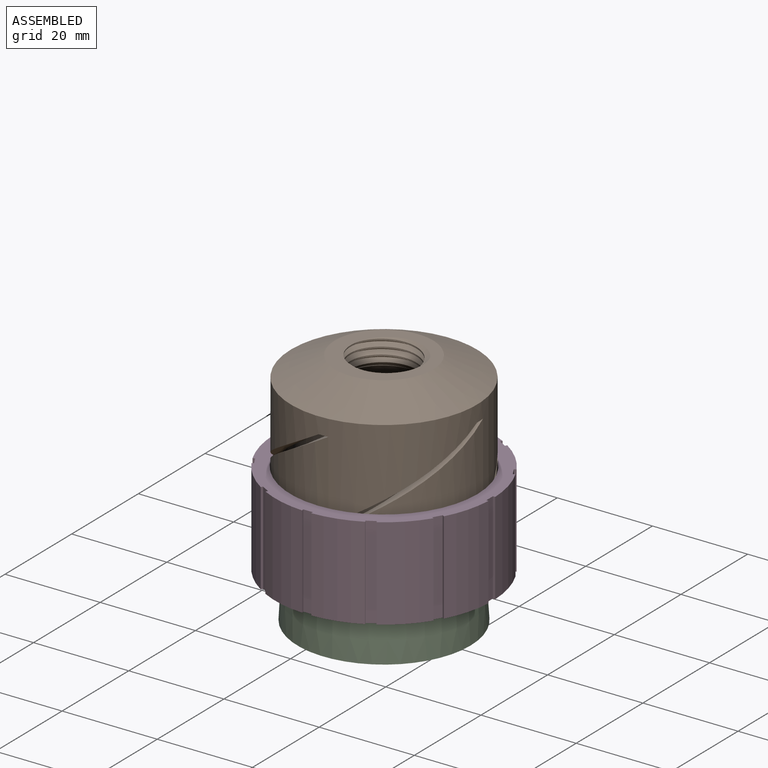
[diagram: assembled view]
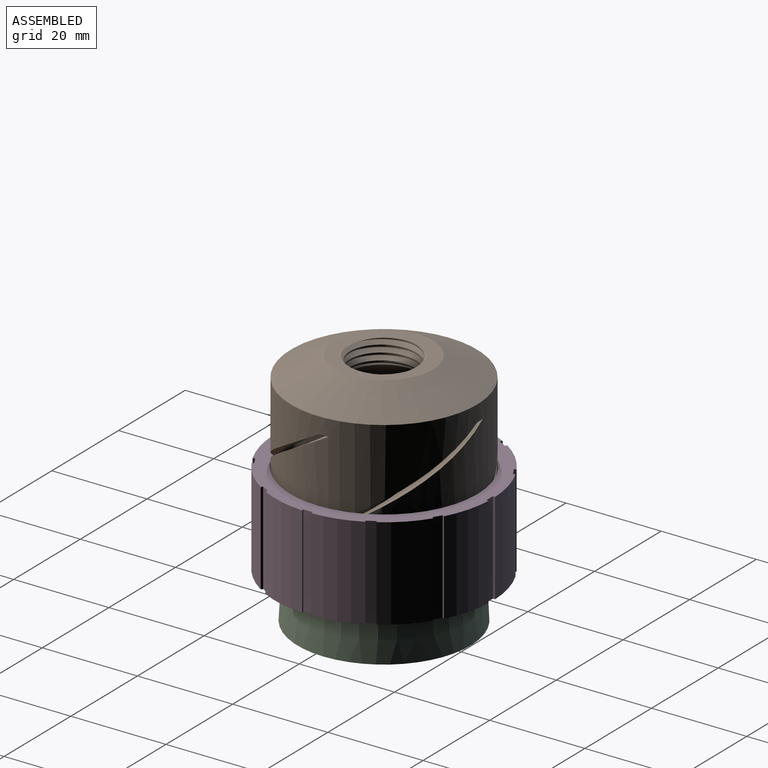
[diagram: assembled view, second angle]
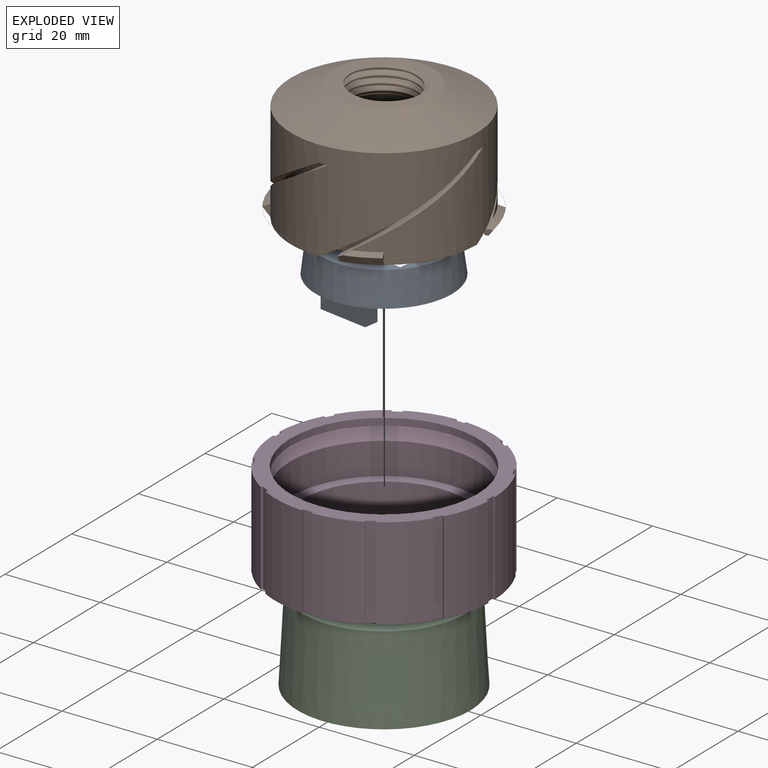
[diagram: exploded view]
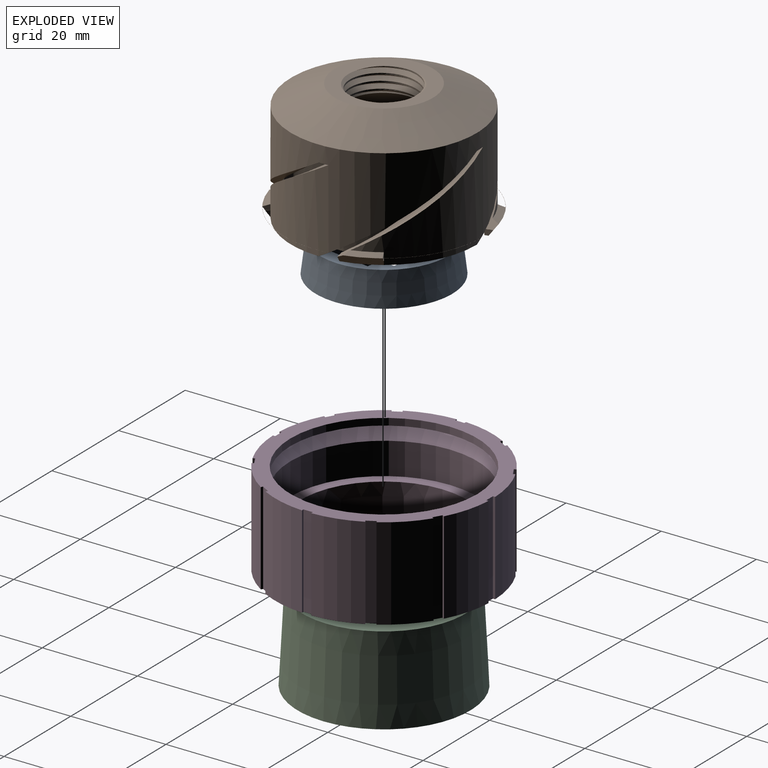
[diagram: exploded view, second angle]
ASSEMBLY  parts=4 mates=5
PART A: 16 faces, bbox 28.8x28.8x12.1 mm
  f0: cone r=14.38mm half-angle=7deg, axis (0,0,-1), area 616.7mm2, adj f1,f2
  f1: plane 27.04x27.04mm, normal (0,0,1), area 243.9mm2, adj f0,f8,f9,f10,f11,f12,f13,f14
  f2: plane 28.75x28.75mm, normal (0,0,-1), area 286.6mm2, adj f0,f3,f4,f5,f6,f8,f9,f10
  f3: plane 10.67x5.08mm, normal (0,-1,0), area 54.2mm2, adj f2,f4,f6,f7
  f4: plane 5.08x3.05mm, normal (-1,0,0), area 15.5mm2, adj f2,f3,f5,f7
  f5: plane 10.67x5.08mm, normal (0,1,0), area 54.2mm2, adj f2,f4,f6,f7
  f6: plane 5.08x3.05mm, normal (1,0,0), area 15.5mm2, adj f2,f3,f5,f7
  f7: plane 10.67x3.05mm, normal (0,0,-1), area 32.5mm2, adj f3,f4,f5,f6
  f8: plane 13.34x6.99mm, normal (1,0,0), area 93.1mm2, adj f1,f2,f9,f15
  f9: plane 21.23x6.99mm, normal (0,1,0), area 148.3mm2, adj f1,f2,f8,f10
  f10: plane 13.34x6.99mm, normal (-1,0,0), area 93.1mm2, adj f1,f2,f9,f11
  f11: plane 6.99x3.23mm, normal (0,-1,0), area 22.6mm2, adj f1,f2,f10,f12
  f12: plane 6.99x3.18mm, normal (-1,0,0), area 22.2mm2, adj f1,f2,f11,f13
  f13: plane 14.82x6.99mm, normal (0,-1,0), area 103.5mm2, adj f1,f2,f12,f14
  f14: plane 6.99x3.18mm, normal (1,0,0), area 22.2mm2, adj f1,f2,f13,f15
  f15: plane 6.99x3.19mm, normal (0,-1,0), area 22.3mm2, adj f1,f2,f8,f14
PART B: 96 faces, bbox 43.6x43.6x26.9 mm
  f0: cone r=19.56mm half-angle=36.3deg, axis (0,0,1), area 18.8mm2, adj f5,f8,f18,f25,f38,f68,f71,f85
  f1: cone r=19.56mm half-angle=36.3deg, axis (0,0,1), area 18.8mm2, adj f7,f10,f17,f23,f36,f64,f66,f81
  f2: cone r=19.56mm half-angle=36.3deg, axis (0,0,1), area 18.8mm2, adj f6,f12,f16,f24,f32,f60,f62,f77
  f3: cone r=19.56mm half-angle=36.3deg, axis (0,0,1), area 18.8mm2, adj f4,f15,f26,f34,f52,f57,f59,f73
  f4: bspline ~9.09x6.88mm, area 0mm2, adj f3,f52,f73
  f5: bspline ~9.09x6.88mm, area 0mm2, adj f0,f8,f86
  f6: bspline ~9.09x6.88mm, area 0mm2, adj f2,f12,f78
  f7: bspline ~9.09x6.88mm, area 0mm2, adj f1,f10,f82
  f8: cone r=20.96mm half-angle=70deg, axis (0,0,-1), area 9.6mm2, adj f0,f5,f38,f48,f85,f86
  f9: cone r=20.96mm half-angle=70deg, axis (0,0,-1), area 0mm2, adj f33,f47,f84
  f10: cone r=20.96mm half-angle=70deg, axis (0,0,-1), area 9.6mm2, adj f1,f7,f36,f47,f81,f82
  f11: cone r=20.96mm half-angle=70deg, axis (0,0,-1), area 0mm2, adj f37,f47,f80
  f12: cone r=20.96mm half-angle=70deg, axis (0,0,-1), area 9.6mm2, adj f2,f6,f32,f47,f77,f78
  f13: cone r=20.96mm half-angle=70deg, axis (0,0,-1), area 0mm2, adj f35,f47,f76
  f14: cone r=20.96mm half-angle=70deg, axis (0,0,-1), area 0mm2, adj f31,f47,f72
  f15: plane 1.82x0.43mm, normal (0,0,-1), area 0mm2, adj f3,f30,f34,f59,f92,f93
  f16: plane 1.82x0.43mm, normal (0,0,-1), area 0mm2, adj f2,f28,f32,f60,f94,f95
  f17: plane 1.82x0.43mm, normal (0,0,-1), area 0mm2, adj f1,f27,f36,f64,f90,f91
  f18: plane 1.82x0.43mm, normal (0,0,-1), area 0mm2, adj f0,f29,f38,f68,f88,f89
  f19: bspline ~9.09x6.88mm, area 1.9mm2, adj f26,f30,f47,f58
  f20: bspline ~9.09x6.88mm, area 1.9mm2, adj f25,f29,f47,f69
  f21: bspline ~9.09x6.88mm, area 1.9mm2, adj f24,f28,f47,f63
  f22: bspline ~9.09x6.88mm, area 1.9mm2, adj f23,f27,f47,f67
  f23: plane 19.13x15.65mm, normal (0,0,-1), area 19.9mm2, adj f1,f22,f27,f47,f64
  f24: plane 19.13x15.65mm, normal (0,0,-1), area 19.9mm2, adj f2,f21,f28,f47,f60
  f25: plane 19.13x15.65mm, normal (0,0,-1), area 19.9mm2, adj f0,f20,f29,f48,f68
  f26: plane 19.13x15.65mm, normal (0,0,-1), area 19.9mm2, adj f3,f19,f30,f47,f59
  f27: cone r=15.62mm half-angle=10.1deg, axis (0,0,-1), area 455.9mm2, adj f17,f22,f23,f36,f37,f46,f64,f65
  f28: cone r=15.62mm half-angle=10.1deg, axis (0,0,-1), area 455.9mm2, adj f16,f21,f24,f32,f35,f46,f60,f61
  f29: cone r=15.62mm half-angle=10.1deg, axis (0,0,-1), area 455.9mm2, adj f18,f20,f25,f33,f38,f46,f68,f69
  f30: cone r=15.62mm half-angle=10.1deg, axis (0,0,-1), area 455.9mm2, adj f15,f19,f26,f31,f34,f46,f56,f58
  f31: bspline ~25.62x21.49mm, area 77.1mm2, adj f14,f30,f40,f47,f56,f72
  f32: bspline ~27.53x20.32mm, area 79.4mm2, adj f2,f12,f16,f28,f40,f47,f94,f95
  f33: bspline ~25.62x21.49mm, area 77.1mm2, adj f9,f29,f41,f47,f70,f84
  f34: bspline ~27.53x20.32mm, area 79.4mm2, adj f3,f15,f30,f41,f47,f52,f92,f93
  f35: bspline ~25.62x21.49mm, area 77.1mm2, adj f13,f28,f42,f47,f61,f76
  f36: bspline ~27.53x20.32mm, area 79.4mm2, adj f1,f10,f17,f27,f42,f47,f90,f91
  f37: bspline ~25.62x21.49mm, area 77.1mm2, adj f11,f27,f43,f47,f65,f80
  f38: bspline ~27.53x20.32mm, area 79.4mm2, adj f0,f8,f18,f29,f43,f47,f48,f88
  f39: cone r=21.16mm half-angle=65.5deg, axis (0,0,-1), area 952.3mm2, adj f45,f47
  f40: plane 4.01x1.95mm, normal (0,0,-1), area 6.9mm2, adj f31,f32,f46,f47
  f41: plane 4.01x1.95mm, normal (0,0,-1), area 6.9mm2, adj f33,f34,f46,f47
  f42: plane 4.01x1.95mm, normal (0,0,-1), area 6.9mm2, adj f35,f36,f46,f47
  f43: plane 4.01x1.95mm, normal (0,0,-1), area 6.9mm2, adj f37,f38,f46,f47
  f44: plane 31.24x31.24mm, normal (0,0,-1), area 131mm2, adj f46,f51
  f45: plane 21.32x21.32mm, normal (0,0,1), area 163.6mm2, adj f39,f53,f54,f55
  f46: cylinder r=15.62mm len=31.24mm, axis (0,0,1), area 1745.1mm2, adj f27,f28,f29,f30,f40,f41,f42,f43
  f47: cylinder r=19.56mm len=39.12mm, axis (0,0,1), area 2169mm2, adj f9,f10,f11,f12,f13,f14,f19,f20
  f48: cylinder r=19.56mm len=18.61mm, axis (0,0,1), area 220.3mm2, adj f8,f25,f38,f47,f71,f85
  f49: cone r=12.47mm half-angle=40deg, axis (0,0,-1), area 11.6mm2, adj f50,f53,f54,f55
  f50: cone r=12.47mm half-angle=40deg, axis (0,0,-1), area 481.8mm2, adj f49,f51,f54,f55
  f51: cone r=14.22mm half-angle=7deg, axis (0,0,-1), area 1205.3mm2, adj f44,f50
  f52: cone r=20.96mm half-angle=70deg, axis (0,0,-1), area 9.6mm2, adj f3,f4,f34,f47,f73,f74
  f53: cylinder r=6.99mm len=13.97mm, axis (0,0,1), area 43.4mm2, adj f45,f49,f54,f55
  f54: bspline ~18.48x16mm, area 203mm2, adj f45,f49,f50,f53,f55
  f55: bspline ~18.48x16mm, area 192.1mm2, adj f45,f49,f50,f53,f54
  f56: plane 0.99x0.25mm, normal (0,0,-1), area 0.1mm2, adj f30,f31,f47,f58
  f57: plane 1.21x0.73mm, normal (0.57,-0.82,0), area 0.5mm2, adj f3,f47,f75
  f58: plane 0.97x0.1mm, normal (1,0.1,0), area 0.1mm2, adj f19,f30,f47,f56
  f59: plane 1.82x1.21mm, normal (-0.21,0.98,0), area 1.6mm2, adj f3,f15,f26,f30
  f60: plane 1.82x1.21mm, normal (-0.98,-0.21,0), area 1.6mm2, adj f2,f16,f24,f28
  f61: plane 0.99x0.25mm, normal (0,0,-1), area 0.1mm2, adj f28,f35,f47,f63
  f62: plane 1.21x0.73mm, normal (0.82,0.57,0), area 0.5mm2, adj f2,f47,f79
  f63: plane 0.97x0.1mm, normal (-0.1,1,0), area 0.1mm2, adj f21,f28,f47,f61
  f64: plane 1.82x1.21mm, normal (0.21,-0.98,0), area 1.6mm2, adj f1,f17,f23,f27
  f65: plane 0.99x0.25mm, normal (0,0,-1), area 0.1mm2, adj f27,f37,f47,f67
  f66: plane 1.21x0.73mm, normal (-0.57,0.82,0), area 0.5mm2, adj f1,f47,f83
  f67: plane 0.97x0.1mm, normal (-1,-0.1,0), area 0.1mm2, adj f22,f27,f47,f65
  f68: plane 1.82x1.21mm, normal (0.98,0.21,0), area 1.6mm2, adj f0,f18,f25,f29
  f69: plane 0.97x0.1mm, normal (0.1,-1,0), area 0.1mm2, adj f20,f29,f47,f70
  f70: plane 0.99x0.25mm, normal (0,0,-1), area 0.1mm2, adj f29,f33,f47,f69
  f71: plane 1.21x0.73mm, normal (-0.82,-0.57,0), area 0.5mm2, adj f0,f48,f87
  f72: plane 0.13x0.05mm, normal (-0.98,-0.21,0), area 0mm2, adj f14,f31,f47
  f73: cylinder r=20.95mm len=20.78mm, axis (0,0,-1), area 0.2mm2, adj f3,f4,f52,f74
  f74: plane 1.24x1.21mm, normal (0.47,-0.88,0), area 1.2mm2, adj f3,f47,f52,f73,f75
  f75: plane 0.79x0.51mm, normal (0,0,1), area 0mm2, adj f3,f57,f74
  f76: plane 0.13x0.05mm, normal (0.21,-0.98,0), area 0mm2, adj f13,f35,f47
  f77: plane 1.24x1.21mm, normal (0.88,0.47,0), area 1.2mm2, adj f2,f12,f47,f78,f79
  f78: cylinder r=20.95mm len=20.78mm, axis (0,0,-1), area 0.2mm2, adj f2,f6,f12,f77
  f79: plane 0.79x0.51mm, normal (0,0,1), area 0mm2, adj f2,f62,f77
  f80: plane 0.13x0.05mm, normal (0.98,0.21,0), area 0mm2, adj f11,f37,f47
  f81: plane 1.24x1.21mm, normal (-0.47,0.88,0), area 1.2mm2, adj f1,f10,f47,f82,f83
  f82: cylinder r=20.95mm len=20.78mm, axis (0,0,-1), area 0.2mm2, adj f1,f7,f10,f81
  f83: plane 0.79x0.51mm, normal (0,0,1), area 0mm2, adj f1,f66,f81
  f84: plane 0.13x0.05mm, normal (-0.21,0.98,0), area 0mm2, adj f9,f33,f47
  f85: plane 1.24x1.21mm, normal (-0.88,-0.47,0), area 1.2mm2, adj f0,f8,f48,f86,f87
  f86: cylinder r=20.95mm len=20.78mm, axis (0,0,-1), area 0.2mm2, adj f0,f5,f8,f85
  f87: plane 0.79x0.51mm, normal (0,0,1), area 0mm2, adj f0,f71,f85
  f88: cylinder r=19.56mm len=0.03mm, axis (0,0,-1), area 0mm2, adj f18,f38,f89
  f89: plane 0.88x0.19mm, normal (0.98,0.21,0), area 0mm2, adj f0,f18,f38,f88
  f90: cylinder r=19.56mm len=0.03mm, axis (0,0,-1), area 0mm2, adj f17,f36,f91
  f91: plane 0.88x0.19mm, normal (0.21,-0.98,0), area 0mm2, adj f1,f17,f36,f90
  f92: cylinder r=19.56mm len=0.03mm, axis (0,0,-1), area 0mm2, adj f15,f34,f93
  f93: plane 0.88x0.19mm, normal (-0.21,0.98,0), area 0mm2, adj f3,f15,f34,f92
  f94: cylinder r=19.56mm len=0.03mm, axis (0,0,-1), area 0mm2, adj f16,f32,f95
  f95: plane 0.88x0.19mm, normal (-0.98,-0.21,0), area 0mm2, adj f2,f16,f32,f94
PART C: 12 faces, bbox 36.3x36.3x18.2 mm
  f0: cone r=18.16mm half-angle=3deg, axis (0,0,-1), area 2020.8mm2, adj f2,f10
  f1: cylinder r=16.26mm len=32.51mm, axis (0,0,-1), area 1549.3mm2, adj f2,f3,f4,f6,f8
  f2: plane 36.32x36.32mm, normal (0,0,-1), area 206mm2, adj f0,f1
  f3: plane 32.51x32.51mm, normal (0,0,-1), area 205.9mm2, adj f1,f11
  f4: cylinder r=1.88mm len=3.93mm, axis (0.87,-0.5,0), area 15.3mm2, adj f1,f5
  f5: plane 3.76x3.26mm, normal (-0.87,0.5,0), area 11.1mm2, adj f4
  f6: cylinder r=1.88mm len=3.93mm, axis (-0.87,-0.5,0), area 15.3mm2, adj f1,f7
  f7: plane 3.76x3.26mm, normal (0.87,0.5,0), area 11.1mm2, adj f6
  f8: cylinder r=1.88mm len=3.76mm, axis (0,1,0), area 15.3mm2, adj f1,f9
  f9: plane 3.76x3.76mm, normal (0,-1,0), area 11.1mm2, adj f8
  f10: plane 34.42x34.42mm, normal (0,0,1), area 306.1mm2, adj f0,f11
  f11: cylinder r=14.1mm len=28.19mm, axis (0,0,-1), area 236.2mm2, adj f3,f10
PART D: 56 faces, bbox 45.7x45.7x19.4 mm
  f0: cylinder r=22.86mm len=19.43mm, axis (0,0,-1), area 194.4mm2, adj f12,f13,f50,f53
  f1: cylinder r=22.86mm len=19.43mm, axis (0,0,-1), area 194.4mm2, adj f12,f13,f47,f49
  f2: cylinder r=22.86mm len=19.43mm, axis (0,0,-1), area 194.4mm2, adj f12,f13,f44,f46
  f3: cylinder r=22.86mm len=19.43mm, axis (0,0,-1), area 194.4mm2, adj f12,f13,f20,f43
  f4: cylinder r=22.86mm len=19.43mm, axis (0,0,-1), area 194.4mm2, adj f12,f13,f40,f54
  f5: cylinder r=22.86mm len=19.43mm, axis (0,0,-1), area 194.4mm2, adj f12,f13,f37,f41
  f6: cylinder r=22.86mm len=19.43mm, axis (0,0,-1), area 194.4mm2, adj f12,f13,f34,f38
  f7: cylinder r=22.86mm len=19.43mm, axis (0,0,-1), area 194.4mm2, adj f12,f13,f31,f35
  f8: cylinder r=22.86mm len=19.43mm, axis (0,0,-1), area 194.4mm2, adj f12,f13,f28,f32
  f9: cylinder r=22.86mm len=19.43mm, axis (0,0,-1), area 194.4mm2, adj f12,f13,f25,f29
  f10: cylinder r=22.86mm len=19.43mm, axis (0,0,-1), area 194.4mm2, adj f12,f13,f22,f26
  f11: cylinder r=22.86mm len=19.43mm, axis (0,0,-1), area 194.4mm2, adj f12,f13,f19,f23
  f12: plane 45.7x45.7mm, normal (0,0,1), area 412.9mm2, adj f0,f1,f2,f3,f4,f5,f6,f7
  f13: plane 45.7x45.7mm, normal (0,0,-1), area 622.9mm2, adj f0,f1,f2,f3,f4,f5,f6,f7
  f14: cylinder r=19.69mm len=39.37mm, axis (0,0,1), area 179.3mm2, adj f12,f15
  f15: cone r=19.63mm half-angle=70deg, axis (0,0,-1), area 236.6mm2, adj f14,f16
  f16: cone r=21.41mm half-angle=37.3deg, axis (0,0,1), area 367.2mm2, adj f15,f18
  f17: plane 39.37x39.37mm, normal (0,0,1), area 258.8mm2, adj f18,f55
  f18: cylinder r=19.69mm len=39.37mm, axis (0,0,1), area 829.8mm2, adj f16,f17
  f19: plane 19.43x0.4mm, normal (0.5,0.87,0), area 9mm2, adj f11,f12,f13,f21
  f20: plane 19.43x0.42mm, normal (-0.5,-0.87,0), area 9.4mm2, adj f3,f12,f13,f21
  f21: plane 19.43x1.7mm, normal (0.87,-0.5,0), area 38.2mm2, adj f12,f13,f19,f20
  f22: plane 19.43x0.4mm, normal (0.87,0.5,0), area 9mm2, adj f10,f12,f13,f24
  f23: plane 19.43x0.42mm, normal (-0.87,-0.5,0), area 9.4mm2, adj f11,f12,f13,f24
  f24: plane 19.43x1.7mm, normal (0.5,-0.87,0), area 38.2mm2, adj f12,f13,f22,f23
  f25: plane 19.43x0.46mm, normal (1,0,0), area 9mm2, adj f9,f12,f13,f27
  f26: plane 19.43x0.48mm, normal (-1,0,0), area 9.4mm2, adj f10,f12,f13,f27
  f27: plane 19.43x1.96mm, normal (0,-1,0), area 38.2mm2, adj f12,f13,f25,f26
  f28: plane 19.43x0.4mm, normal (0.87,-0.5,0), area 9mm2, adj f8,f12,f13,f30
  f29: plane 19.43x0.42mm, normal (-0.87,0.5,0), area 9.4mm2, adj f9,f12,f13,f30
  f30: plane 19.43x1.7mm, normal (-0.5,-0.87,0), area 38.2mm2, adj f12,f13,f28,f29
  f31: plane 19.43x0.4mm, normal (0.5,-0.87,0), area 9mm2, adj f7,f12,f13,f33
  f32: plane 19.43x0.42mm, normal (-0.5,0.87,0), area 9.4mm2, adj f8,f12,f13,f33
  f33: plane 19.43x1.7mm, normal (-0.87,-0.5,0), area 38.2mm2, adj f12,f13,f31,f32
  f34: plane 19.43x0.46mm, normal (0,-1,0), area 9mm2, adj f6,f12,f13,f36
  f35: plane 19.43x0.48mm, normal (0,1,0), area 9.4mm2, adj f7,f12,f13,f36
  f36: plane 19.43x1.96mm, normal (-1,0,0), area 38.2mm2, adj f12,f13,f34,f35
  f37: plane 19.43x0.4mm, normal (-0.5,-0.87,0), area 9mm2, adj f5,f12,f13,f39
  f38: plane 19.43x0.42mm, normal (0.5,0.87,0), area 9.4mm2, adj f6,f12,f13,f39
  f39: plane 19.43x1.7mm, normal (-0.87,0.5,0), area 38.2mm2, adj f12,f13,f37,f38
  f40: plane 19.43x0.4mm, normal (-0.87,-0.5,0), area 9mm2, adj f4,f12,f13,f42
  f41: plane 19.43x0.42mm, normal (0.87,0.5,0), area 9.4mm2, adj f5,f12,f13,f42
  f42: plane 19.43x1.7mm, normal (-0.5,0.87,0), area 38.2mm2, adj f12,f13,f40,f41
  f43: plane 19.43x0.46mm, normal (0,1,0), area 9mm2, adj f3,f12,f13,f45
  f44: plane 19.43x0.48mm, normal (0,-1,0), area 9.4mm2, adj f2,f12,f13,f45
  f45: plane 19.43x1.96mm, normal (1,0,0), area 38.2mm2, adj f12,f13,f43,f44
  f46: plane 19.43x0.4mm, normal (-0.5,0.87,0), area 9mm2, adj f2,f12,f13,f48
  f47: plane 19.43x0.42mm, normal (0.5,-0.87,0), area 9.4mm2, adj f1,f12,f13,f48
  f48: plane 19.43x1.7mm, normal (0.87,0.5,0), area 38.2mm2, adj f12,f13,f46,f47
  f49: plane 19.43x0.4mm, normal (-0.87,0.5,0), area 9mm2, adj f1,f12,f13,f51
  f50: plane 19.43x0.42mm, normal (0.87,-0.5,0), area 9.4mm2, adj f0,f12,f13,f51
  f51: plane 19.43x1.7mm, normal (0.5,0.87,0), area 38.2mm2, adj f12,f13,f49,f50
  f52: plane 19.43x1.96mm, normal (0,1,0), area 38.2mm2, adj f12,f13,f53,f54
  f53: plane 19.43x0.46mm, normal (-1,0,0), area 9mm2, adj f0,f12,f13,f52
  f54: plane 19.43x0.48mm, normal (1,0,0), area 9.4mm2, adj f4,f12,f13,f52
  f55: cone r=17.91mm half-angle=3deg, axis (0,0,-1), area 932.8mm2, adj f13,f17
PLACE A rot(axis=(0,0,-1),9.1deg) t=(-19.22,-21.65,27.07)mm
PLACE B rot(axis=(0,0,-1),0.1deg) t=(-19.22,-21.65,29.61)mm
PLACE C rot(axis=(0,0,-1),0.1deg) t=(-19.22,-21.65,4.67)mm
PLACE D rot(axis=(0,0,1),179.9deg) t=(-19.22,-21.65,14.45)mm
MATE parallel B.f0 <-> D.f14  axis (0,0,1) through (-19.22,-21.65,30.57)mm
MATE cylindrical B.f47 <-> D.f14  axis (0,0,1) through (-19.22,-21.65,29.61)mm
MATE cylindrical C.f0 <-> D.f55  axis (0,0,-1) through (-19.22,-21.65,13.75)mm
MATE parallel A.f2 <-> B.f86  axis (0,0,-1) through (-26.08,-30.84,27.07)mm
MATE fastened D.f0 <-> C.f0  axis (0,0,1) through (-19.22,-21.65,22.83)mm
